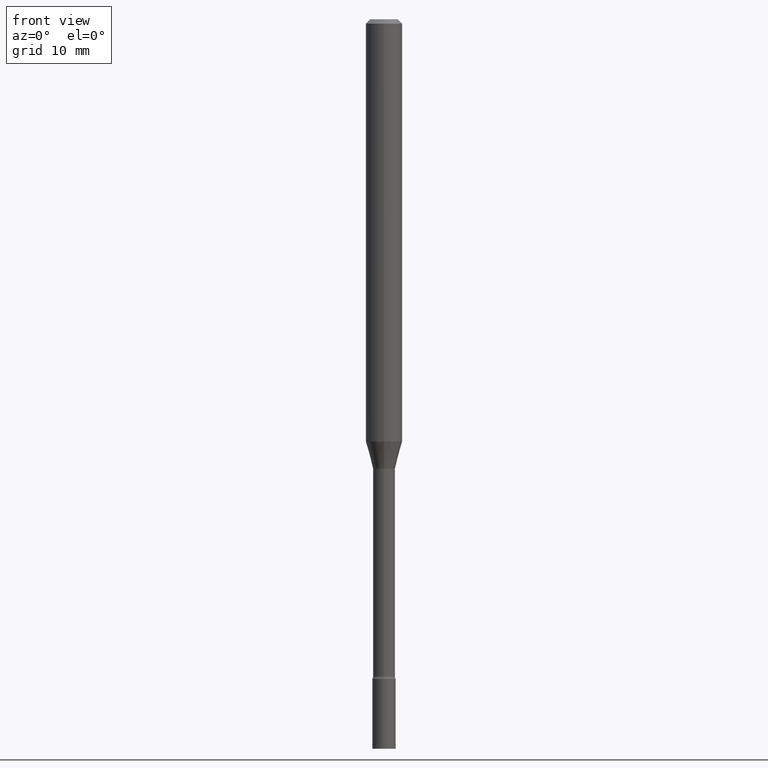
[diagram: clean part render]
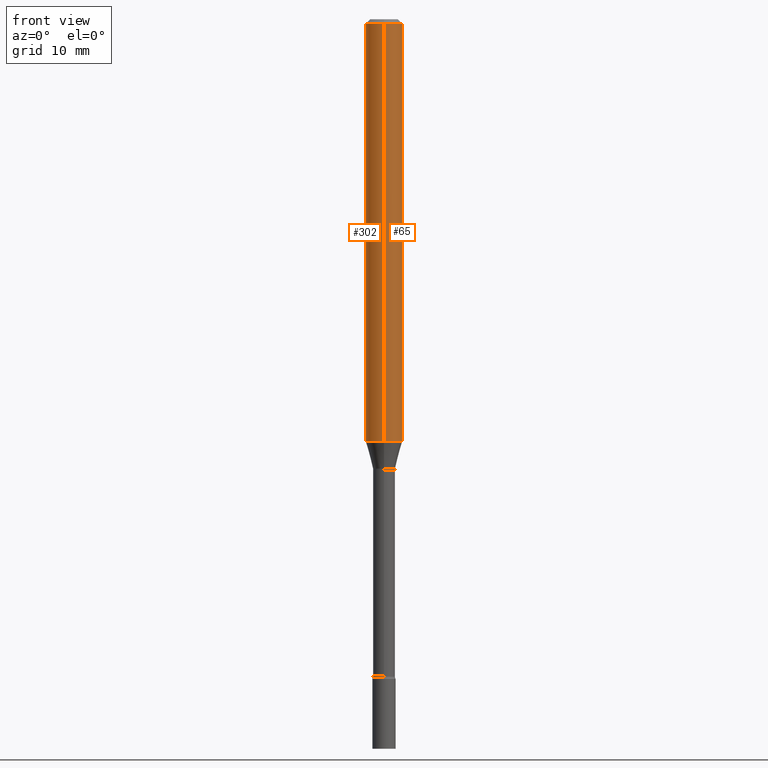
[diagram: same view with one multi-face feature highlighted, each face labeled with its STEP entity id]
A machine part, front view. The highlighted faces form ONE feature: a constant-radius fillet chain: 2 tangent blend faces with common blend radius 1.5875 mm. The faces share edges in the B-rep.
Their STEP definitions:
[1] entity #65 (Cylinder):
#5 = AXIS2_PLACEMENT_3D ( 'NONE', #284, #436, #320 ) ;
#8 = EDGE_CURVE ( 'NONE', #315, #61, #357, .T. ) ;
#10 = EDGE_CURVE ( 'NONE', #253, #458, #125, .T. ) ;
#29 = EDGE_CURVE ( 'NONE', #315, #253, #364, .T. ) ;
#41 = AXIS2_PLACEMENT_3D ( 'NONE', #471, #401, #84 ) ;
#42 = FACE_OUTER_BOUND ( 'NONE', #425, .T. ) ;
#45 = ORIENTED_EDGE ( 'NONE', *, *, #118, .T. ) ;
#47 = DIRECTION ( 'NONE',  ( -2.445478384323493564E-29, 3.491467622403864625E-15, 1.000000000000000000 ) ) ;
#61 = VERTEX_POINT ( 'NONE', #479 ) ;
#65 = ADVANCED_FACE ( 'NONE', ( #42 ), #76, .T. ) ;
#76 = CYLINDRICAL_SURFACE ( 'NONE', #201, 0.06250000000000000000 ) ;
#84 = DIRECTION ( 'NONE',  ( -6.982962677686265922E-15, -1.000000000000000000, 3.483106191921935554E-15 ) ) ;
#117 = CARTESIAN_POINT ( 'NONE',  ( -4.364351673553916201E-16, -0.06250000000000000000, 2.182167264002415144E-16 ) ) ;
#118 = EDGE_CURVE ( 'NONE', #61, #458, #194, .T. ) ;
#125 = CIRCLE ( 'NONE', #41, 0.06250000000000000000 ) ;
#162 = CARTESIAN_POINT ( 'NONE',  ( -4.364351673553912750E-16, -0.06250000000000005551, -0.01499999999999981209 ) ) ;
#194 = LINE ( 'NONE', #358, #319 ) ;
#201 = AXIS2_PLACEMENT_3D ( 'NONE', #317, #238, #393 ) ;
#238 = DIRECTION ( 'NONE',  ( -2.445478384323493564E-29, 3.491467622403864625E-15, 1.000000000000000000 ) ) ;
#244 = ORIENTED_EDGE ( 'NONE', *, *, #8, .T. ) ;
#253 = VERTEX_POINT ( 'NONE', #162 ) ;
#284 = CARTESIAN_POINT ( 'NONE',  ( 3.538783137338422599E-29, -5.052404807963108821E-15, -1.447071934891535294 ) ) ;
#297 = VECTOR ( 'NONE', #478, 39.37007874015748143 ) ;
#305 = CARTESIAN_POINT ( 'NONE',  ( -4.364351673553565651E-16, -0.06250000000000509315, -1.447071934891535072 ) ) ;
#315 = VERTEX_POINT ( 'NONE', #305 ) ;
#317 = CARTESIAN_POINT ( 'NONE',  ( 0.000000000000000000, 0.000000000000000000, 0.000000000000000000 ) ) ;
#319 = VECTOR ( 'NONE', #47, 39.37007874015748143 ) ;
#320 = DIRECTION ( 'NONE',  ( -6.982962677686265922E-15, -1.000000000000000000, 4.370956789862821150E-15 ) ) ;
#338 = ORIENTED_EDGE ( 'NONE', *, *, #29, .F. ) ;
#357 = CIRCLE ( 'NONE', #5, 0.06250000000000000000 ) ;
#358 = CARTESIAN_POINT ( 'NONE',  ( 4.440892098500625669E-16, 0.06250000000000000000, -2.182167264002415144E-16 ) ) ;
#364 = LINE ( 'NONE', #117, #297 ) ;
#393 = DIRECTION ( 'NONE',  ( -6.982962677686265922E-15, -1.000000000000000000, 3.491467622403864231E-15 ) ) ;
#401 = DIRECTION ( 'NONE',  ( -2.445478384323493564E-29, 3.491467622403864625E-15, 1.000000000000000000 ) ) ;
#425 = EDGE_LOOP ( 'NONE', ( #244, #45, #470, #338 ) ) ;
#436 = DIRECTION ( 'NONE',  ( -2.445478384323493564E-29, 3.491467622403864625E-15, 1.000000000000000000 ) ) ;
#458 = VERTEX_POINT ( 'NONE', #514 ) ;
#470 = ORIENTED_EDGE ( 'NONE', *, *, #10, .F. ) ;
#471 = CARTESIAN_POINT ( 'NONE',  ( 3.668217576485247563E-31, -5.237201433605808056E-17, -0.01500000000000003067 ) ) ;
#478 = DIRECTION ( 'NONE',  ( -2.445478384323493564E-29, 3.491467622403864625E-15, 1.000000000000000000 ) ) ;
#479 = CARTESIAN_POINT ( 'NONE',  ( 4.440892098500977205E-16, 0.06249999999999491379, -1.447071934891535516 ) ) ;
#514 = CARTESIAN_POINT ( 'NONE',  ( 4.440892098500982135E-16, 0.06249999999999995143, -0.01500000000000024751 ) ) ;
[2] entity #302 (Cylinder):
#18 = CARTESIAN_POINT ( 'NONE',  ( 3.668217576485247563E-31, -5.237201433605808056E-17, -0.01500000000000003067 ) ) ;
#28 = DIRECTION ( 'NONE',  ( -6.982962677686265922E-15, -1.000000000000000000, 3.491467622403864231E-15 ) ) ;
#29 = EDGE_CURVE ( 'NONE', #315, #253, #364, .T. ) ;
#31 = CYLINDRICAL_SURFACE ( 'NONE', #488, 0.06250000000000000000 ) ;
#47 = DIRECTION ( 'NONE',  ( -2.445478384323493564E-29, 3.491467622403864625E-15, 1.000000000000000000 ) ) ;
#50 = ORIENTED_EDGE ( 'NONE', *, *, #252, .F. ) ;
#58 = DIRECTION ( 'NONE',  ( -2.445478384323493564E-29, 3.491467622403864625E-15, 1.000000000000000000 ) ) ;
#61 = VERTEX_POINT ( 'NONE', #479 ) ;
#117 = CARTESIAN_POINT ( 'NONE',  ( -4.364351673553916201E-16, -0.06250000000000000000, 2.182167264002415144E-16 ) ) ;
#118 = EDGE_CURVE ( 'NONE', #61, #458, #194, .T. ) ;
#132 = DIRECTION ( 'NONE',  ( -2.445478384323493564E-29, 3.491467622403864625E-15, 1.000000000000000000 ) ) ;
#140 = CARTESIAN_POINT ( 'NONE',  ( 0.000000000000000000, 0.000000000000000000, 0.000000000000000000 ) ) ;
#162 = CARTESIAN_POINT ( 'NONE',  ( -4.364351673553912750E-16, -0.06250000000000005551, -0.01499999999999981209 ) ) ;
#178 = EDGE_LOOP ( 'NONE', ( #295, #312, #443, #50 ) ) ;
#179 = DIRECTION ( 'NONE',  ( -2.445478384323493564E-29, 3.491467622403864625E-15, 1.000000000000000000 ) ) ;
#194 = LINE ( 'NONE', #358, #319 ) ;
#202 = CIRCLE ( 'NONE', #448, 0.06250000000000000000 ) ;
#224 = CIRCLE ( 'NONE', #419, 0.06250000000000000000 ) ;
#228 = FACE_OUTER_BOUND ( 'NONE', #178, .T. ) ;
#252 = EDGE_CURVE ( 'NONE', #458, #253, #224, .T. ) ;
#253 = VERTEX_POINT ( 'NONE', #162 ) ;
#295 = ORIENTED_EDGE ( 'NONE', *, *, #118, .F. ) ;
#297 = VECTOR ( 'NONE', #478, 39.37007874015748143 ) ;
#302 = ADVANCED_FACE ( 'NONE', ( #228 ), #31, .T. ) ;
#305 = CARTESIAN_POINT ( 'NONE',  ( -4.364351673553565651E-16, -0.06250000000000509315, -1.447071934891535072 ) ) ;
#306 = EDGE_CURVE ( 'NONE', #61, #315, #202, .T. ) ;
#312 = ORIENTED_EDGE ( 'NONE', *, *, #306, .T. ) ;
#315 = VERTEX_POINT ( 'NONE', #305 ) ;
#319 = VECTOR ( 'NONE', #47, 39.37007874015748143 ) ;
#358 = CARTESIAN_POINT ( 'NONE',  ( 4.440892098500625669E-16, 0.06250000000000000000, -2.182167264002415144E-16 ) ) ;
#364 = LINE ( 'NONE', #117, #297 ) ;
#373 = DIRECTION ( 'NONE',  ( -6.982962677686265922E-15, -1.000000000000000000, 3.483106191921935554E-15 ) ) ;
#419 = AXIS2_PLACEMENT_3D ( 'NONE', #18, #132, #373 ) ;
#443 = ORIENTED_EDGE ( 'NONE', *, *, #29, .T. ) ;
#448 = AXIS2_PLACEMENT_3D ( 'NONE', #463, #179, #511 ) ;
#458 = VERTEX_POINT ( 'NONE', #514 ) ;
#463 = CARTESIAN_POINT ( 'NONE',  ( 3.538783137338422599E-29, -5.052404807963108821E-15, -1.447071934891535294 ) ) ;
#478 = DIRECTION ( 'NONE',  ( -2.445478384323493564E-29, 3.491467622403864625E-15, 1.000000000000000000 ) ) ;
#479 = CARTESIAN_POINT ( 'NONE',  ( 4.440892098500977205E-16, 0.06249999999999491379, -1.447071934891535516 ) ) ;
#488 = AXIS2_PLACEMENT_3D ( 'NONE', #140, #58, #28 ) ;
#511 = DIRECTION ( 'NONE',  ( -6.982962677686265922E-15, -1.000000000000000000, 4.370956789862821150E-15 ) ) ;
#514 = CARTESIAN_POINT ( 'NONE',  ( 4.440892098500982135E-16, 0.06249999999999995143, -0.01500000000000024751 ) ) ;